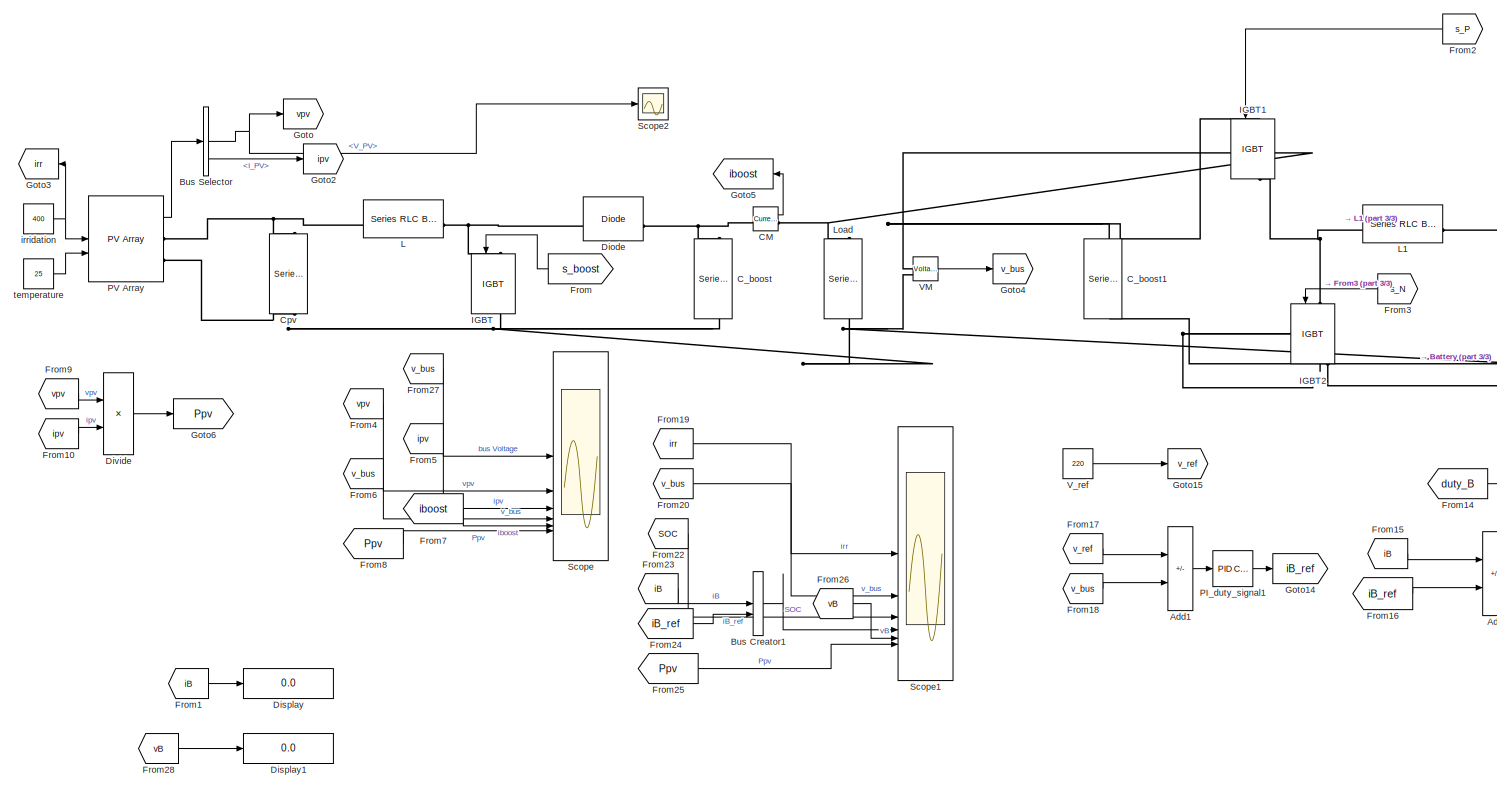
[diagram: root canvas - part 1/3, center side, full height]
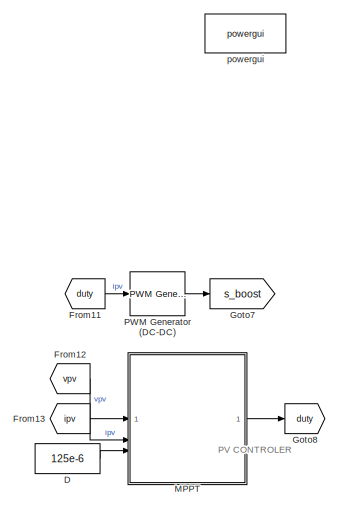
[diagram: root canvas - part 2/3, middle left region]
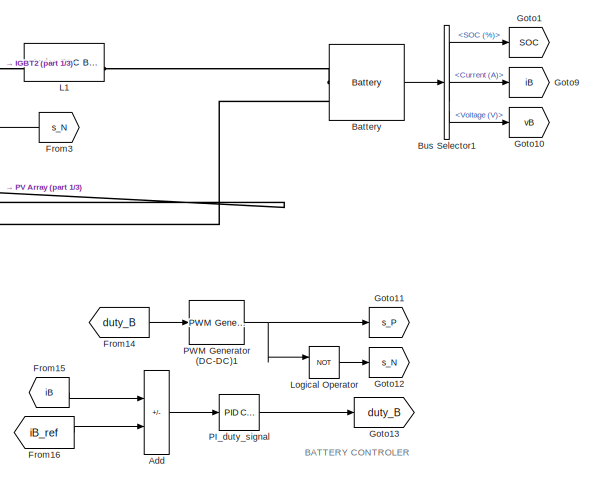
[diagram: root canvas - part 3/3, middle right region]
MODEL slx_771471c506d3
KIND model
CONFIG AbsTol = auto
CONFIG EnableMultiTasking = off
CONFIG FixedStep = 10e-6
CONFIG MaxStep = auto
CONFIG MinStep = auto
CONFIG RelTol = 1e-3
CONFIG SampleTimeConstraint = Unconstrained
CONFIG SolverName = FixedStepDiscrete
CONFIG StartTime = 0.0
CONFIG StopTime = 5
BLOCK [Sum] Add
  IconShape = rectangular
  Inputs = +-
BLOCK [Sum] Add1
  IconShape = rectangular
  Inputs = +-
BLOCK [Reference] Battery  REF=spsBatteryLib/Battery
  LibrarySourceBlock = electricdrivelib/Extra Sources/Battery
  NameLocation = top
  SourceBlock = spsBatteryLib/Battery
  SourceType = Battery
BLOCK [BusCreator] Bus Creator1
  DisplayOption = bar
  InheritFromInputs = on
  Inputs = 2
BLOCK [BusSelector] Bus Selector
  OutputSignals = V_PV,I_PV
BLOCK [BusSelector] Bus Selector1
  OutputSignals = SOC (%),Current (A),Voltage (V)
BLOCK [Reference] CM  REF=spsCurrentMeasurementLib/Current Measurement
  LibrarySourceBlock = sps_lib/Sensors and Measurements/Current Measurement
  SourceBlock = spsCurrentMeasurementLib/Current Measurement
  SourceType = Current Measurement
  UserDataPersistent = on
BLOCK [Reference] C_boost  REF=spsSeriesRLCBranchLib/Series RLC Branch
  LibrarySourceBlock = sps_lib/Passives/Series RLC Branch
  NameLocation = left
  SourceBlock = spsSeriesRLCBranchLib/Series RLC Branch
  SourceType = Series RLC Branch
BLOCK [Reference] C_boost1  REF=spsSeriesRLCBranchLib/Series RLC Branch
  LibrarySourceBlock = sps_lib/Passives/Series RLC Branch
  NameLocation = left
  SourceBlock = spsSeriesRLCBranchLib/Series RLC Branch
  SourceType = Series RLC Branch
BLOCK [Reference] Cpv  REF=spsSeriesRLCBranchLib/Series RLC Branch
  LibrarySourceBlock = sps_lib/Passives/Series RLC Branch
  NameLocation = left
  SourceBlock = spsSeriesRLCBranchLib/Series RLC Branch
  SourceType = Series RLC Branch
BLOCK [Constant] D
  Value = 125e-6
BLOCK [Reference] Diode  REF=spsDiodeLib/Diode
  LibrarySourceBlock = sps_lib/Power Electronics/Diode
  SourceBlock = spsDiodeLib/Diode
  SourceType = Diode
BLOCK [Display] Display
  Decimation = 1
BLOCK [Display] Display1
  Decimation = 1
BLOCK [Product] Divide
  Inputs = **
BLOCK [From] From
  GotoTag = s_boost
  NameLocation = top
  TagVisibility = global
BLOCK [From] From1
  GotoTag = iB
  TagVisibility = global
BLOCK [From] From10
  GotoTag = ipv
  TagVisibility = global
BLOCK [From] From11
  GotoTag = duty
  TagVisibility = global
BLOCK [From] From12
  GotoTag = vpv
  TagVisibility = global
BLOCK [From] From13
  GotoTag = ipv
  TagVisibility = global
BLOCK [From] From14
  GotoTag = duty_B
BLOCK [From] From15
  GotoTag = iB
  TagVisibility = global
BLOCK [From] From16
  GotoTag = iB_ref
BLOCK [From] From17
  GotoTag = v_ref
BLOCK [From] From18
  GotoTag = v_bus
  TagVisibility = global
BLOCK [From] From19
  GotoTag = irr
  NameLocation = top
  TagVisibility = global
BLOCK [From] From2
  GotoTag = s_P
  NameLocation = top
BLOCK [From] From20
  GotoTag = v_bus
  TagVisibility = global
BLOCK [From] From22
  GotoTag = SOC
  TagVisibility = global
BLOCK [From] From23
  GotoTag = iB
  TagVisibility = global
BLOCK [From] From24
  GotoTag = iB_ref
BLOCK [From] From25
  GotoTag = Ppv
  NameLocation = top
BLOCK [From] From26
  GotoTag = vB
  TagVisibility = global
BLOCK [From] From27
  GotoTag = v_bus
  TagVisibility = global
BLOCK [From] From28
  GotoTag = vB
  TagVisibility = global
BLOCK [From] From3
  GotoTag = s_N
  NameLocation = top
BLOCK [From] From4
  GotoTag = vpv
  TagVisibility = global
BLOCK [From] From5
  GotoTag = ipv
  TagVisibility = global
BLOCK [From] From6
  GotoTag = v_bus
  TagVisibility = global
BLOCK [From] From7
  GotoTag = iboost
  NameLocation = top
  TagVisibility = global
BLOCK [From] From8
  GotoTag = Ppv
  NameLocation = top
BLOCK [From] From9
  GotoTag = vpv
  TagVisibility = global
BLOCK [Goto] Goto
  GotoTag = vpv
  TagVisibility = global
BLOCK [Goto] Goto1
  GotoTag = SOC
  TagVisibility = global
BLOCK [Goto] Goto10
  GotoTag = vB
  TagVisibility = global
BLOCK [Goto] Goto11
  GotoTag = s_P
  NameLocation = top
BLOCK [Goto] Goto12
  GotoTag = s_N
  NameLocation = top
BLOCK [Goto] Goto13
  GotoTag = duty_B
BLOCK [Goto] Goto14
  GotoTag = iB_ref
BLOCK [Goto] Goto15
  GotoTag = v_ref
BLOCK [Goto] Goto2
  GotoTag = ipv
  TagVisibility = global
BLOCK [Goto] Goto3
  GotoTag = irr
  NameLocation = top
  TagVisibility = global
BLOCK [Goto] Goto4
  GotoTag = v_bus
  TagVisibility = global
BLOCK [Goto] Goto5
  GotoTag = iboost
  NameLocation = top
  TagVisibility = global
BLOCK [Goto] Goto6
  GotoTag = Ppv
BLOCK [Goto] Goto7
  GotoTag = s_boost
  NameLocation = top
  TagVisibility = global
BLOCK [Goto] Goto8
  GotoTag = duty
  TagVisibility = global
BLOCK [Goto] Goto9
  GotoTag = iB
  TagVisibility = global
BLOCK [Reference] IGBT  REF=spsIGBTLib/IGBT
  LibrarySourceBlock = sps_lib/Power Electronics/IGBT
  NameLocation = left
  SourceBlock = spsIGBTLib/IGBT
  SourceType = IGBT
BLOCK [Reference] IGBT1  REF=spsIGBTLib/IGBT
  LibrarySourceBlock = sps_lib/Power Electronics/IGBT
  NameLocation = left
  SourceBlock = spsIGBTLib/IGBT
  SourceType = IGBT
BLOCK [Reference] IGBT2  REF=spsIGBTLib/IGBT
  LibrarySourceBlock = sps_lib/Power Electronics/IGBT
  NameLocation = left
  SourceBlock = spsIGBTLib/IGBT
  SourceType = IGBT
BLOCK [Reference] L  REF=spsSeriesRLCBranchLib/Series RLC Branch
  LibrarySourceBlock = sps_lib/Passives/Series RLC Branch
  SourceBlock = spsSeriesRLCBranchLib/Series RLC Branch
  SourceType = Series RLC Branch
BLOCK [Reference] L1  REF=spsSeriesRLCBranchLib/Series RLC Branch
  LibrarySourceBlock = sps_lib/Passives/Series RLC Branch
  SourceBlock = spsSeriesRLCBranchLib/Series RLC Branch
  SourceType = Series RLC Branch
BLOCK [Reference] Load  REF=spsSeriesRLCBranchLib/Series RLC Branch
  LibrarySourceBlock = sps_lib/Passives/Series RLC Branch
  NameLocation = left
  SourceBlock = spsSeriesRLCBranchLib/Series RLC Branch
  SourceType = Series RLC Branch
BLOCK [Logic] Logical Operator
  AllPortsSameDT = off
  Operator = NOT
  OutDataTypeStr = boolean
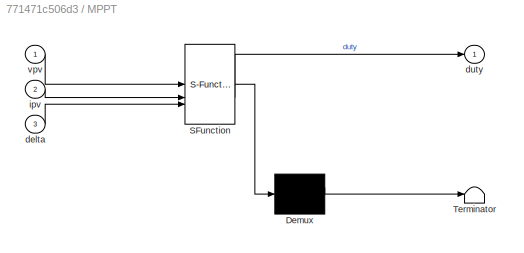
BLOCK [SubSystem] MPPT
  ErrorFcn = Stateflow.Translate.translate
  PermitHierarchicalResolution = ExplicitOnly
  SFBlockType = MATLAB Function
  TreatAsAtomicUnit = on
BLOCK [Demux] MPPT/ Demux 
  Outputs = 1
BLOCK [S-Function] MPPT/ SFunction 
  EnableBusSupport = on
  FunctionName = sf_sfun
  PortCounts = [3 2]
  SFcnIsStateOwnerBlock = off
  SFunctionDeploymentMode = off
  Tag = Stateflow S-Function 1
BLOCK [Terminator] MPPT/ Terminator 
BLOCK [Inport] MPPT/delta
  Port = 3
BLOCK [Outport] MPPT/duty
BLOCK [Inport] MPPT/ipv
  Port = 2
BLOCK [Inport] MPPT/vpv
BLOCK [Reference] PI_duty_signal  REF=slpidlib/PID Controller
  SourceBlock = slpidlib/PID Controller
  SourceType = PID 1dof
BLOCK [Reference] PI_duty_signal1  REF=slpidlib/PID Controller
  SourceBlock = slpidlib/PID Controller
  SourceType = PID 1dof
BLOCK [Reference] PV Array  REF=spsPVArrayLib/PV Array
  LibrarySourceBlock = sps_lib/Sources/PV Array
  SourceBlock = spsPVArrayLib/PV Array
  SourceType = PV array
BLOCK [Reference] PWM Generator (DC-DC)  REF=spsPWMGeneratorDCDCLib/PWM Generator
(DC-DC)
  LibrarySourceBlock = sps_lib/Power Electronics/Power Electronics Control/PWM Generator\n(DC-DC)
  SourceBlock = spsPWMGeneratorDCDCLib/PWM Generator\n(DC-DC)
  SourceType = PWM Generator (DC-DC)
BLOCK [Reference] PWM Generator (DC-DC)1  REF=spsPWMGeneratorDCDCLib/PWM Generator
(DC-DC)
  LibrarySourceBlock = sps_lib/Power Electronics/Power Electronics Control/PWM Generator\n(DC-DC)
  SourceBlock = spsPWMGeneratorDCDCLib/PWM Generator\n(DC-DC)
  SourceType = PWM Generator (DC-DC)
BLOCK [Scope] Scope
  Floating = off
  NumInputPorts = 6
  ScopeSpecificationString = Simulink.scopes.TimeScopeBlockCfg('CurrentConfiguration', extmgr.ConfigurationSet(extmgr.Configuration('Core','General UI',true,'FigureColor',[1 1 1]),extmgr.Configuration('Core','Source UI',true),extmgr.Configuration('Sources','WiredSimulink',true),extmgr.Configuration('Visuals','Time Domain',true,'SerializedDisplays',{struct('MinYLimReal','-28.21669','MaxYLimReal','253.95042','YLabelReal','','Mi...<+7031ch>
BLOCK [Scope] Scope1
  Floating = off
  NumInputPorts = 6
  ScopeSpecificationString = Simulink.scopes.TimeScopeBlockCfg('CurrentConfiguration', extmgr.ConfigurationSet(extmgr.Configuration('Core','General UI',true,'FigureColor',[1 1 1]),extmgr.Configuration('Core','Source UI',true),extmgr.Configuration('Sources','WiredSimulink',true,'DataLoggingVariableName','ScopeData1'),extmgr.Configuration('Visuals','Time Domain',true,'SerializedDisplays',{struct('MinYLimReal','350.00000','MaxYL...<+7694ch>
BLOCK [Scope] Scope2
  Floating = off
  NumInputPorts = 1
  ScopeSpecificationString = Simulink.scopes.TimeScopeBlockCfg('CurrentConfiguration', extmgr.ConfigurationSet(extmgr.Configuration('Core','General UI',true),extmgr.Configuration('Core','Source UI',true),extmgr.Configuration('Sources','WiredSimulink',true,'DataLoggingVariableName','ScopeData1'),extmgr.Configuration('Visuals','Time Domain',true,'SerializedDisplays',{struct('MinYLimReal','-18.27579','MaxYLimReal','190.51053','Y...<+1400ch>
BLOCK [Reference] VM  REF=spsVoltageMeasurementLib/Voltage Measurement
  LibrarySourceBlock = sps_lib/Sensors and Measurements/Voltage Measurement
  SourceBlock = spsVoltageMeasurementLib/Voltage Measurement
  SourceType = Voltage Measurement
  UserDataPersistent = on
BLOCK [Constant] V_ref
  Value = 220
BLOCK [Constant] irridation
  Value = 400
BLOCK [Reference] powergui  REF=spspowerguiLib/powergui
  LibrarySourceBlock = sps_lib/powergui
  Priority = 1
  SourceBlock = spspowerguiLib/powergui
  SourceType = PSB option menu block
BLOCK [Constant] temperature
  Value = 25
ANNOTATION (root): BATTERY CONTROLER
ANNOTATION (root): PV CONTROLER
LINE Add1:1 -> PI_duty_signal1:1
LINE Add:1 -> PI_duty_signal:1
LINE Battery:1 -> Bus Selector1:1
LINE Bus Creator1:1 -> Scope1:4
LINE Bus Selector1:1 -> Goto1:1
LINE Bus Selector1:2 -> Goto9:1
LINE Bus Selector1:3 -> Goto10:1
NET Bus Selector:1 -> Goto:1, Scope2:1
LINE Bus Selector:2 -> Goto2:1
LINE CM:1 -> Goto5:1
LINE D:1 -> MPPT:3
LINE Divide:1 -> Goto6:1
LINE From10:1 -> Divide:2
LINE From11:1 -> PWM Generator (DC-DC):1
LINE From12:1 -> MPPT:1
LINE From13:1 -> MPPT:2
LINE From14:1 -> PWM Generator (DC-DC)1:1
LINE From15:1 -> Add:1
LINE From16:1 -> Add:2
LINE From17:1 -> Add1:1
LINE From18:1 -> Add1:2
LINE From19:1 -> Scope1:1
LINE From1:1 -> Display:1
LINE From20:1 -> Scope1:2
LINE From22:1 -> Scope1:3
LINE From23:1 -> Bus Creator1:1
LINE From24:1 -> Bus Creator1:2
LINE From25:1 -> Scope1:6
LINE From26:1 -> Scope1:5
LINE From27:1 -> Scope:1
LINE From28:1 -> Display1:1
LINE From2:1 -> IGBT1:1
LINE From3:1 -> IGBT2:1
LINE From4:1 -> Scope:2
LINE From5:1 -> Scope:3
LINE From6:1 -> Scope:4
LINE From7:1 -> Scope:5
LINE From8:1 -> Scope:6
LINE From9:1 -> Divide:1
LINE From:1 -> IGBT:1
LINE Logical Operator:1 -> Goto12:1
LINE MPPT:1 -> Goto8:1
LINE PI_duty_signal1:1 -> Goto14:1
LINE PI_duty_signal:1 -> Goto13:1
LINE PV Array:1 -> Bus Selector:1
NET PWM Generator (DC-DC)1:1 -> Goto11:1, Logical Operator:1
LINE PWM Generator (DC-DC):1 -> Goto7:1
LINE VM:1 -> Goto4:1
LINE V_ref:1 -> Goto15:1
NET irridation:1 -> Goto3:1, PV Array:1
LINE temperature:1 -> PV Array:2
PLINE Battery:LConn1 -- L1:RConn1
PNET net1: Battery:LConn2 -- C_boost1:RConn1 -- C_boost:RConn1 -- Cpv:RConn1 -- IGBT2:RConn1 -- IGBT:RConn1 -- Load:RConn1 -- PV Array:RConn2 -- VM:LConn2
PNET net2: CM:LConn1 -- C_boost:LConn1 -- Diode:RConn1
PNET net3: CM:RConn1 -- C_boost1:LConn1 -- IGBT1:LConn1 -- Load:LConn1 -- VM:LConn1
PNET net4: Cpv:LConn1 -- L:LConn1 -- PV Array:RConn1
PNET net5: Diode:LConn1 -- IGBT:LConn1 -- L:RConn1
PNET net6: IGBT1:RConn1 -- IGBT2:LConn1 -- L1:LConn1
note: NET lines group one-source signal fan-out (src -> all destinations, sorted); 1:1 wires keep LINE; PNET lines group multi-terminal physical nets as a canonical sorted terminal list (undirected conserving connections); 2-terminal nets keep the pairwise PLINE form
CHART MPPT states=1 transitions=1
  STATE_LABEL 'eML_blk_kernel()'
  STATE_LABEL 'SCRIPT:\nfunction duty = MPPT_algorithm(vpv,ipv,delta)\nduty_init = 0.1;\n% min and max value are used to limit duty between\n% 0 and 0.85\nduty_min=0;\nduty_max=0.85;\n\npersistent Vold Pold duty_old;\n% persistent variable type can be store the data\n% we need the old data by obtain difference\n% between old and new value\nif isempty(Vold)\n    Vold=0;\n    Pold=0;\n    duty_old=duty_init;\nend\nP= vpv*ipv; % po...<+805ch>'
CHART  states=0 transitions=0
